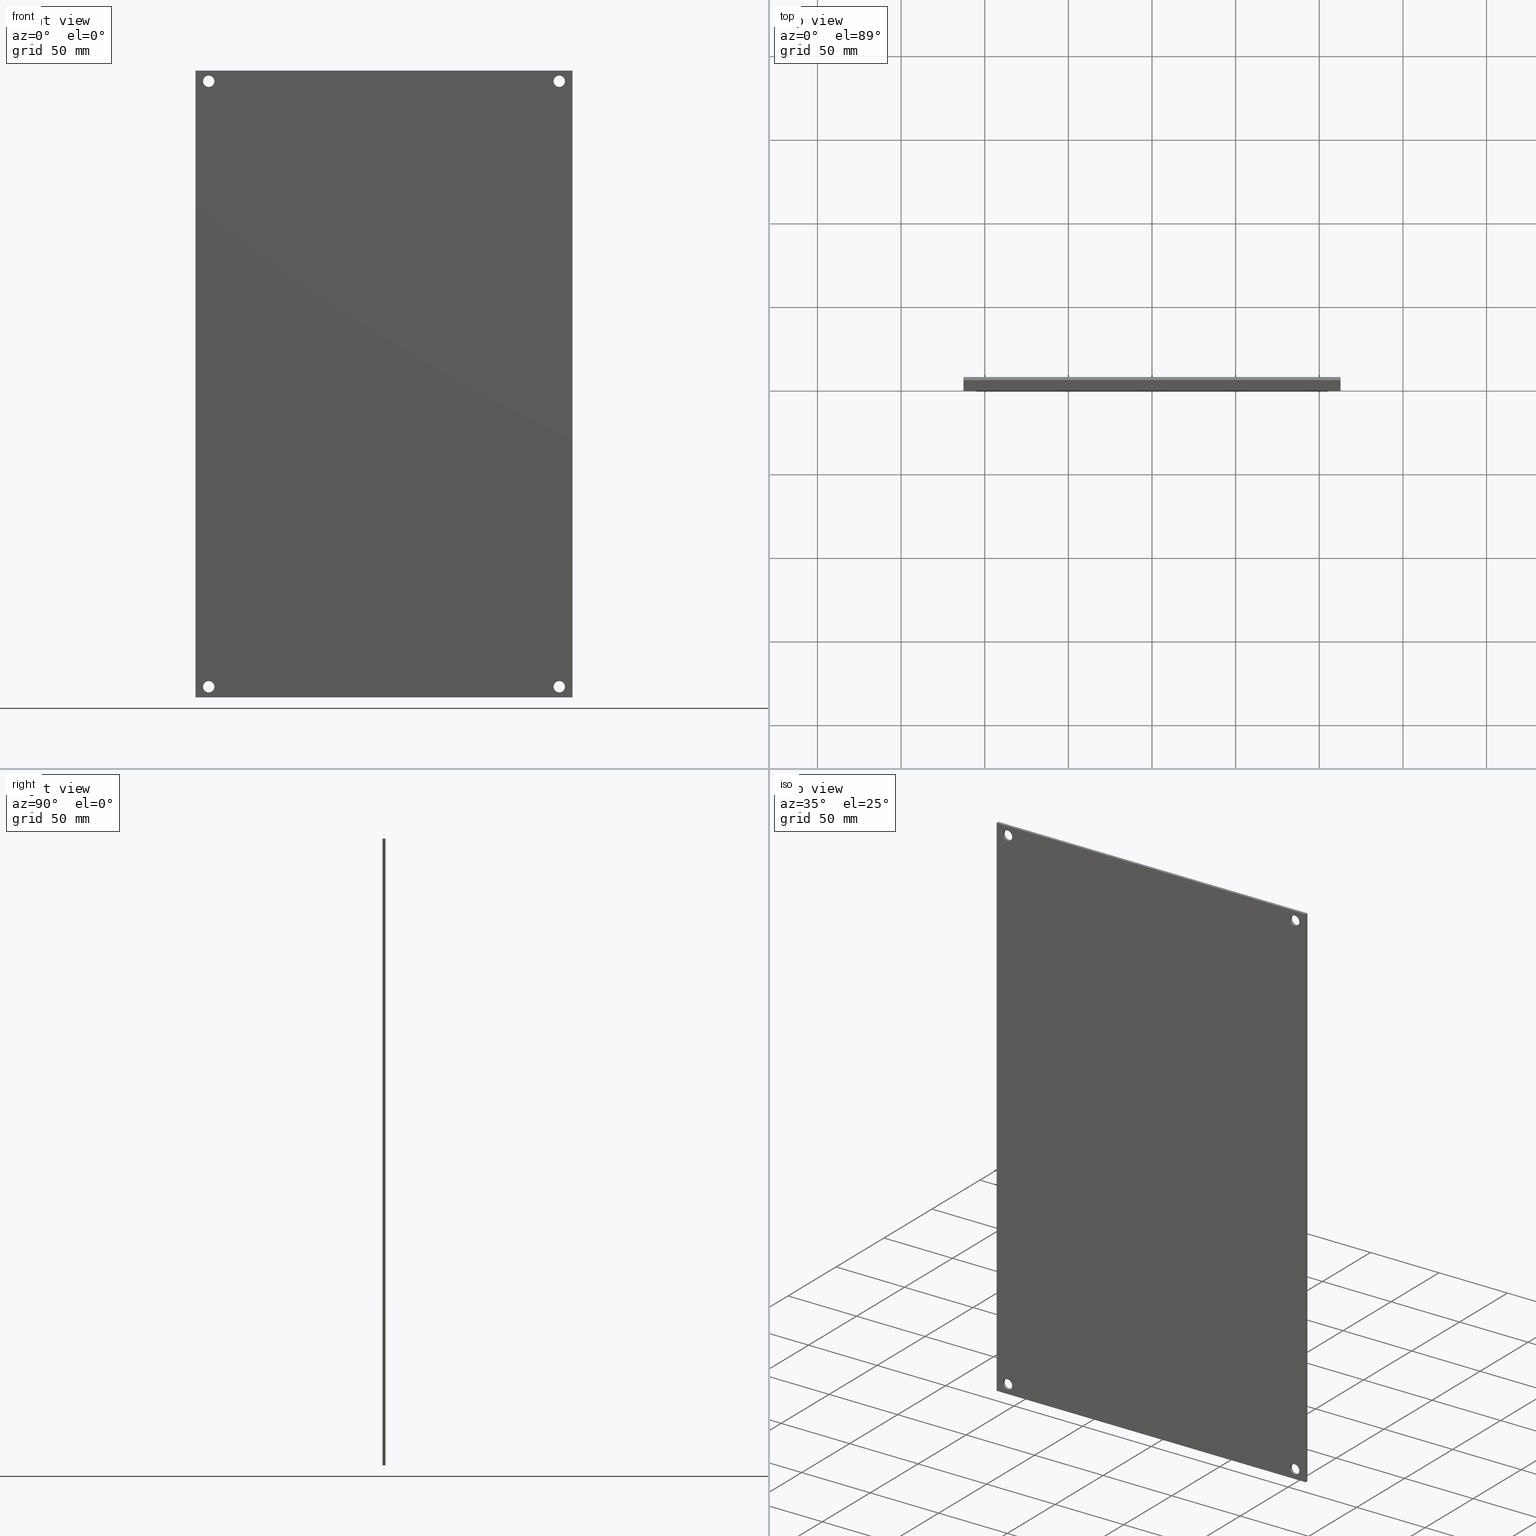
[diagram: canonical four-view strip — front | top / right | iso, engineering-drawing reading convention]
A machine part, canonical four-view strip (front | top / right | iso — engineering-drawing reading convention). The complete STEP part file that produces these views, byte-faithful:
ISO-10303-21;
HEADER;
FILE_DESCRIPTION (( 'STEP AP214' ),
    '1' );
FILE_NAME ('14G1509.STEP',
    '2019-09-13T17:13:19',
    ( '' ),
    ( '' ),
    'SwSTEP 2.0',
    'SolidWorks 2018',
    '' );
FILE_SCHEMA (( 'AUTOMOTIVE_DESIGN' ));
ENDSEC;

DATA;
#1 = SURFACE_STYLE_USAGE ( .BOTH. , #46 ) ;
#2 = FILL_AREA_STYLE ('',( #398 ) ) ;
#3 = EDGE_CURVE ( 'NONE', #502, #14, #254, .T. ) ;
#4 = UNCERTAINTY_MEASURE_WITH_UNIT (LENGTH_MEASURE( 1.000000000000000082E-05 ), #381, 'distance_accuracy_value', 'NONE');
#5 = SURFACE_STYLE_USAGE ( .BOTH. , #239 ) ;
#6 = ORIENTED_EDGE ( 'NONE', *, *, #21, .F. ) ;
#7 = CARTESIAN_POINT ( 'NONE',  ( -4.125000000000000000, 17.21433440479185251, 7.125000000000000000 ) ) ;
#8 =( LENGTH_UNIT ( ) NAMED_UNIT ( * ) SI_UNIT ( $, .METRE. ) );
#9 = DIRECTION ( 'NONE',  ( 0.0000000000000000000, 0.0000000000000000000, 1.000000000000000000 ) ) ;
#10 = AXIS2_PLACEMENT_3D ( 'NONE', #113, #460, #481 ) ;
#11 = VECTOR ( 'NONE', #415, 39.37007874015748143 ) ;
#12 =( NAMED_UNIT ( * ) SI_UNIT ( $, .STERADIAN. ) SOLID_ANGLE_UNIT ( ) );
#13 = FILL_AREA_STYLE_COLOUR ( '', #429 ) ;
#14 = VERTEX_POINT ( 'NONE', #380 ) ;
#15 = DIRECTION ( 'NONE',  ( 0.0000000000000000000, -1.000000000000000000, 0.0000000000000000000 ) ) ;
#16 = CARTESIAN_POINT ( 'NONE',  ( 4.437500000000000000, 0.07200000000000000844, 7.375000000000000000 ) ) ;
#17 = CARTESIAN_POINT ( 'NONE',  ( 4.125000000000000000, 0.0000000000000000000, 7.257499999999999396 ) ) ;
#18 = APPLICATION_CONTEXT ( 'automotive_design' ) ;
#19 = ORIENTED_EDGE ( 'NONE', *, *, #213, .F. ) ;
#20 = UNCERTAINTY_MEASURE_WITH_UNIT (LENGTH_MEASURE( 1.000000000000000082E-05 ), #203, 'distance_accuracy_value', 'NONE');
#21 = EDGE_CURVE ( 'NONE', #249, #249, #473, .T. ) ;
#22 = CARTESIAN_POINT ( 'NONE',  ( 4.437500000000000000, 0.07200000000000000844, -7.375000000000000000 ) ) ;
#23 = STYLED_ITEM ( 'NONE', ( #352 ), #232 ) ;
#24 = PRODUCT_DEFINITION ( 'UNKNOWN', '', #336, #504 ) ;
#25 = DIRECTION ( 'NONE',  ( -0.0000000000000000000, 1.000000000000000000, -0.0000000000000000000 ) ) ;
#26 = ADVANCED_FACE ( 'NONE', ( #119, #149 ), #118, .F. ) ;
#27 =( GEOMETRIC_REPRESENTATION_CONTEXT ( 3 ) GLOBAL_UNCERTAINTY_ASSIGNED_CONTEXT ( ( #75 ) ) GLOBAL_UNIT_ASSIGNED_CONTEXT ( ( #399, #160, #476 ) ) REPRESENTATION_CONTEXT ( 'NONE', 'WORKASPACE' ) );
#28 = PRESENTATION_STYLE_ASSIGNMENT (( #181 ) ) ;
#29 = COLOUR_RGB ( '',0.7921568627450980005, 0.8196078431372548767, 0.9333333333333333481 ) ;
#30 = EDGE_LOOP ( 'NONE', ( #517 ) ) ;
#31 = ADVANCED_FACE ( 'NONE', ( #353, #68, #127, #209, #85 ), #165, .F. ) ;
#32 = UNCERTAINTY_MEASURE_WITH_UNIT (LENGTH_MEASURE( 1.000000000000000082E-05 ), #100, 'distance_accuracy_value', 'NONE');
#33 = VERTEX_POINT ( 'NONE', #145 ) ;
#34 = SURFACE_STYLE_USAGE ( .BOTH. , #238 ) ;
#35 = DIMENSIONAL_EXPONENTS ( 1.000000000000000000, 0.0000000000000000000, 0.0000000000000000000, 0.0000000000000000000, 0.0000000000000000000, 0.0000000000000000000, 0.0000000000000000000 ) ;
#36 = LENGTH_MEASURE_WITH_UNIT ( LENGTH_MEASURE( 0.02539999999999999897 ), #526 );
#37 = PRESENTATION_LAYER_ASSIGNMENT (  '', '', ( #214 ) ) ;
#38 = SURFACE_STYLE_FILL_AREA ( #364 ) ;
#39 = DIRECTION ( 'NONE',  ( 0.0000000000000000000, 0.0000000000000000000, -1.000000000000000000 ) ) ;
#40 =( LENGTH_UNIT ( ) NAMED_UNIT ( * ) SI_UNIT ( $, .METRE. ) );
#41 = LINE ( 'NONE', #409, #51 ) ;
#42 =( LENGTH_UNIT ( ) NAMED_UNIT ( * ) SI_UNIT ( $, .METRE. ) );
#43 = LINE ( 'NONE', #174, #326 ) ;
#44 = ORIENTED_EDGE ( 'NONE', *, *, #267, .T. ) ;
#45 = MECHANICAL_DESIGN_GEOMETRIC_PRESENTATION_REPRESENTATION (  '', ( #474 ), #186 ) ;
#46 = SURFACE_SIDE_STYLE ('',( #392 ) ) ;
#47 =( LENGTH_UNIT ( ) NAMED_UNIT ( * ) SI_UNIT ( $, .METRE. ) );
#48 =( CONVERSION_BASED_UNIT ( 'INCH', #244 ) LENGTH_UNIT ( ) NAMED_UNIT ( #193 ) );
#49 = MECHANICAL_DESIGN_GEOMETRIC_PRESENTATION_REPRESENTATION (  '', ( #114 ), #256 ) ;
#50 =( LENGTH_UNIT ( ) NAMED_UNIT ( * ) SI_UNIT ( $, .METRE. ) );
#51 = VECTOR ( 'NONE', #335, 39.37007874015748143 ) ;
#52 = DIRECTION ( 'NONE',  ( 0.0000000000000000000, -0.0000000000000000000, -1.000000000000000000 ) ) ;
#53 = CARTESIAN_POINT ( 'NONE',  ( 4.125000000000000000, 17.21433440479185251, -7.125000000000000000 ) ) ;
#54 = EDGE_LOOP ( 'NONE', ( #295 ) ) ;
#55 = ORIENTED_EDGE ( 'NONE', *, *, #472, .F. ) ;
#56 = FILL_AREA_STYLE_COLOUR ( '', #370 ) ;
#57 = CARTESIAN_POINT ( 'NONE',  ( -4.437500000000000000, 0.07200000000000000844, 7.375000000000000000 ) ) ;
#58 = FILL_AREA_STYLE_COLOUR ( '', #29 ) ;
#59 = DIRECTION ( 'NONE',  ( 1.000000000000000000, 0.0000000000000000000, 0.0000000000000000000 ) ) ;
#60 = AXIS2_PLACEMENT_3D ( 'NONE', #266, #25, #241 ) ;
#61 = EDGE_LOOP ( 'NONE', ( #426, #182, #394, #44 ) ) ;
#62 =( NAMED_UNIT ( * ) PLANE_ANGLE_UNIT ( ) SI_UNIT ( $, .RADIAN. ) );
#63 = ORIENTED_EDGE ( 'NONE', *, *, #205, .T. ) ;
#64 = ADVANCED_BREP_SHAPE_REPRESENTATION ( '14G1509', ( #202, #96 ), #121 ) ;
#65 = AXIS2_PLACEMENT_3D ( 'NONE', #125, #126, #478 ) ;
#66 = ADVANCED_FACE ( 'NONE', ( #376, #309 ), #262, .F. ) ;
#67 = SURFACE_STYLE_FILL_AREA ( #445 ) ;
#68 = FACE_BOUND ( 'NONE', #155, .T. ) ;
#69 = EDGE_LOOP ( 'NONE', ( #190 ) ) ;
#70 = ADVANCED_FACE ( 'NONE', ( #286, #154, #179, #300, #463 ), #211, .T. ) ;
#71 = MECHANICAL_DESIGN_GEOMETRIC_PRESENTATION_REPRESENTATION (  '', ( #214 ), #456 ) ;
#72 = PLANE ( 'NONE',  #162 ) ;
#73 =( NAMED_UNIT ( * ) PLANE_ANGLE_UNIT ( ) SI_UNIT ( $, .RADIAN. ) );
#74 = LENGTH_MEASURE_WITH_UNIT ( LENGTH_MEASURE( 0.02539999999999999897 ), #8 );
#75 = UNCERTAINTY_MEASURE_WITH_UNIT (LENGTH_MEASURE( 1.000000000000000082E-05 ), #399, 'distance_accuracy_value', 'NONE');
#76 = STYLED_ITEM ( 'NONE', ( #229 ), #464 ) ;
#77 = VECTOR ( 'NONE', #363, 39.37007874015748143 ) ;
#78 = CARTESIAN_POINT ( 'NONE',  ( 4.125000000000000000, 0.07200000000000075784, 7.125000000000000000 ) ) ;
#79 = EDGE_LOOP ( 'NONE', ( #362, #234, #105, #63 ) ) ;
#80 = CARTESIAN_POINT ( 'NONE',  ( -4.437500000000000000, 0.07200000000000000844, 7.375000000000000000 ) ) ;
#81 = SURFACE_SIDE_STYLE ('',( #412 ) ) ;
#82 = UNCERTAINTY_MEASURE_WITH_UNIT (LENGTH_MEASURE( 1.000000000000000082E-05 ), #134, 'distance_accuracy_value', 'NONE');
#83 = SURFACE_STYLE_FILL_AREA ( #497 ) ;
#84 = AXIS2_PLACEMENT_3D ( 'NONE', #204, #485, #288 ) ;
#85 = FACE_BOUND ( 'NONE', #302, .T. ) ;
#86 = CARTESIAN_POINT ( 'NONE',  ( -4.437500000000000000, 0.07200000000000000844, -7.375000000000000000 ) ) ;
#87 = EDGE_LOOP ( 'NONE', ( #510 ) ) ;
#88 = CARTESIAN_POINT ( 'NONE',  ( -4.437500000000000000, 0.0000000000000000000, 7.375000000000000000 ) ) ;
#89 = EDGE_CURVE ( 'NONE', #287, #275, #422, .T. ) ;
#90 = CARTESIAN_POINT ( 'NONE',  ( -4.437500000000000000, 0.0000000000000000000, -7.375000000000000000 ) ) ;
#91 = FACE_OUTER_BOUND ( 'NONE', #407, .T. ) ;
#92 = SURFACE_SIDE_STYLE ('',( #521 ) ) ;
#93 = PRESENTATION_STYLE_ASSIGNMENT (( #369 ) ) ;
#94 = ORIENTED_EDGE ( 'NONE', *, *, #205, .F. ) ;
#95 = FILL_AREA_STYLE ('',( #433 ) ) ;
#96 = AXIS2_PLACEMENT_3D ( 'NONE', #343, #108, #146 ) ;
#97 = SURFACE_STYLE_USAGE ( .BOTH. , #171 ) ;
#98 = CARTESIAN_POINT ( 'NONE',  ( 4.437500000000000000, 0.0000000000000000000, 7.375000000000000000 ) ) ;
#99 =( GEOMETRIC_REPRESENTATION_CONTEXT ( 3 ) GLOBAL_UNCERTAINTY_ASSIGNED_CONTEXT ( ( #314 ) ) GLOBAL_UNIT_ASSIGNED_CONTEXT ( ( #194, #73, #468 ) ) REPRESENTATION_CONTEXT ( 'NONE', 'WORKASPACE' ) );
#100 =( CONVERSION_BASED_UNIT ( 'INCH', #418 ) LENGTH_UNIT ( ) NAMED_UNIT ( #357 ) );
#101 = DIRECTION ( 'NONE',  ( 0.0000000000000000000, -1.000000000000000000, 0.0000000000000000000 ) ) ;
#102 = CARTESIAN_POINT ( 'NONE',  ( 4.125000000000000000, 0.0000000000000000000, -6.992500000000000604 ) ) ;
#103 = DIRECTION ( 'NONE',  ( -0.0000000000000000000, 1.000000000000000000, 0.0000000000000000000 ) ) ;
#104 = EDGE_CURVE ( 'NONE', #33, #33, #349, .T. ) ;
#105 = ORIENTED_EDGE ( 'NONE', *, *, #267, .F. ) ;
#106 = EDGE_LOOP ( 'NONE', ( #388 ) ) ;
#107 = MECHANICAL_DESIGN_GEOMETRIC_PRESENTATION_REPRESENTATION (  '', ( #372 ), #378 ) ;
#108 = DIRECTION ( 'NONE',  ( 0.0000000000000000000, 0.0000000000000000000, 1.000000000000000000 ) ) ;
#109 = PRODUCT_RELATED_PRODUCT_CATEGORY ( 'part', '', ( #330 ) ) ;
#110 = LINE ( 'NONE', #90, #490 ) ;
#111 = LENGTH_MEASURE_WITH_UNIT ( LENGTH_MEASURE( 0.02539999999999999897 ), #47 );
#112 = EDGE_LOOP ( 'NONE', ( #377 ) ) ;
#113 = CARTESIAN_POINT ( 'NONE',  ( -4.125000000000000000, 0.07200000000000075784, 7.125000000000000000 ) ) ;
#114 = STYLED_ITEM ( 'NONE', ( #479 ), #390 ) ;
#115 = SURFACE_STYLE_USAGE ( .BOTH. , #391 ) ;
#116 = STYLED_ITEM ( 'NONE', ( #482 ), #31 ) ;
#117 = FILL_AREA_STYLE ('',( #283 ) ) ;
#118 = CYLINDRICAL_SURFACE ( 'NONE', #60, 0.1324999999999997569 ) ;
#119 = FACE_OUTER_BOUND ( 'NONE', #87, .T. ) ;
#120 = ORIENTED_EDGE ( 'NONE', *, *, #132, .F. ) ;
#121 =( GEOMETRIC_REPRESENTATION_CONTEXT ( 3 ) GLOBAL_UNCERTAINTY_ASSIGNED_CONTEXT ( ( #385 ) ) GLOBAL_UNIT_ASSIGNED_CONTEXT ( ( #511, #228, #375 ) ) REPRESENTATION_CONTEXT ( 'NONE', 'WORKASPACE' ) );
#122 = DIMENSIONAL_EXPONENTS ( 1.000000000000000000, 0.0000000000000000000, 0.0000000000000000000, 0.0000000000000000000, 0.0000000000000000000, 0.0000000000000000000, 0.0000000000000000000 ) ;
#123 = VERTEX_POINT ( 'NONE', #268 ) ;
#124 = MECHANICAL_DESIGN_GEOMETRIC_PRESENTATION_REPRESENTATION (  '', ( #351 ), #296 ) ;
#125 = CARTESIAN_POINT ( 'NONE',  ( -4.125000000000000000, 17.21433440479185251, -7.125000000000000000 ) ) ;
#126 = DIRECTION ( 'NONE',  ( -0.0000000000000000000, 1.000000000000000000, -0.0000000000000000000 ) ) ;
#127 = FACE_BOUND ( 'NONE', #54, .T. ) ;
#128 = EDGE_LOOP ( 'NONE', ( #320 ) ) ;
#129 = ORIENTED_EDGE ( 'NONE', *, *, #3, .F. ) ;
#130 = SURFACE_STYLE_USAGE ( .BOTH. , #92 ) ;
#131 = SURFACE_STYLE_USAGE ( .BOTH. , #446 ) ;
#132 = EDGE_CURVE ( 'NONE', #275, #502, #514, .T. ) ;
#133 = AXIS2_PLACEMENT_3D ( 'NONE', #57, #493, #175 ) ;
#134 =( CONVERSION_BASED_UNIT ( 'INCH', #74 ) LENGTH_UNIT ( ) NAMED_UNIT ( #158 ) );
#135 = CARTESIAN_POINT ( 'NONE',  ( 4.437500000000000000, 0.07200000000000000844, -7.375000000000000000 ) ) ;
#136 = LENGTH_MEASURE_WITH_UNIT ( LENGTH_MEASURE( 0.02539999999999999897 ), #301 );
#137 =( LENGTH_UNIT ( ) NAMED_UNIT ( * ) SI_UNIT ( $, .METRE. ) );
#138 =( NAMED_UNIT ( * ) PLANE_ANGLE_UNIT ( ) SI_UNIT ( $, .RADIAN. ) );
#139 = FILL_AREA_STYLE_COLOUR ( '', #218 ) ;
#140 = AXIS2_PLACEMENT_3D ( 'NONE', #440, #406, #9 ) ;
#141 = PLANE ( 'NONE',  #458 ) ;
#142 = PRESENTATION_LAYER_ASSIGNMENT (  '', '', ( #116 ) ) ;
#143 =( LENGTH_UNIT ( ) NAMED_UNIT ( * ) SI_UNIT ( $, .METRE. ) );
#144 = ORIENTED_EDGE ( 'NONE', *, *, #104, .T. ) ;
#145 = CARTESIAN_POINT ( 'NONE',  ( 4.125000000000000000, 0.07200000000000075784, 7.257499999999999396 ) ) ;
#146 = DIRECTION ( 'NONE',  ( 1.000000000000000000, 0.0000000000000000000, 0.0000000000000000000 ) ) ;
#147 = VERTEX_POINT ( 'NONE', #417 ) ;
#148 = SURFACE_STYLE_FILL_AREA ( #466 ) ;
#149 = FACE_OUTER_BOUND ( 'NONE', #128, .T. ) ;
#150 = STYLED_ITEM ( 'NONE', ( #461 ), #202 ) ;
#151 = EDGE_CURVE ( 'NONE', #420, #420, #172, .T. ) ;
#152 = CYLINDRICAL_SURFACE ( 'NONE', #365, 0.1324999999999997569 ) ;
#153 = SURFACE_STYLE_FILL_AREA ( #117 ) ;
#154 = FACE_BOUND ( 'NONE', #361, .T. ) ;
#155 = EDGE_LOOP ( 'NONE', ( #436 ) ) ;
#156 =( LENGTH_UNIT ( ) NAMED_UNIT ( * ) SI_UNIT ( $, .METRE. ) );
#157 =( NAMED_UNIT ( * ) PLANE_ANGLE_UNIT ( ) SI_UNIT ( $, .RADIAN. ) );
#158 = DIMENSIONAL_EXPONENTS ( 1.000000000000000000, 0.0000000000000000000, 0.0000000000000000000, 0.0000000000000000000, 0.0000000000000000000, 0.0000000000000000000, 0.0000000000000000000 ) ;
#159 = FACE_OUTER_BOUND ( 'NONE', #246, .T. ) ;
#160 =( NAMED_UNIT ( * ) PLANE_ANGLE_UNIT ( ) SI_UNIT ( $, .RADIAN. ) );
#161 =( NAMED_UNIT ( * ) PLANE_ANGLE_UNIT ( ) SI_UNIT ( $, .RADIAN. ) );
#162 = AXIS2_PLACEMENT_3D ( 'NONE', #166, #39, #207 ) ;
#163 = VECTOR ( 'NONE', #383, 39.37007874015748143 ) ;
#164 = ORIENTED_EDGE ( 'NONE', *, *, #213, .T. ) ;
#165 = PLANE ( 'NONE',  #453 ) ;
#166 = CARTESIAN_POINT ( 'NONE',  ( -4.437500000000000000, 0.07200000000000000844, -7.375000000000000000 ) ) ;
#167 = MECHANICAL_DESIGN_GEOMETRIC_PRESENTATION_REPRESENTATION (  '', ( #116 ), #276 ) ;
#168 = FILL_AREA_STYLE_COLOUR ( '', #196 ) ;
#169 =( NAMED_UNIT ( * ) SI_UNIT ( $, .STERADIAN. ) SOLID_ANGLE_UNIT ( ) );
#170 = LINE ( 'NONE', #414, #487 ) ;
#171 = SURFACE_SIDE_STYLE ('',( #67 ) ) ;
#172 = CIRCLE ( 'NONE', #316, 0.1324999999999997569 ) ;
#173 = COLOUR_RGB ( '',0.7921568627450980005, 0.8196078431372548767, 0.9333333333333333481 ) ;
#174 = CARTESIAN_POINT ( 'NONE',  ( 4.437500000000000000, 0.07200000000000000844, 7.375000000000000000 ) ) ;
#175 = DIRECTION ( 'NONE',  ( 0.0000000000000000000, 0.0000000000000000000, 1.000000000000000000 ) ) ;
#176 = SURFACE_SIDE_STYLE ('',( #83 ) ) ;
#177 = LENGTH_MEASURE_WITH_UNIT ( LENGTH_MEASURE( 0.02539999999999999897 ), #143 );
#178 = DIRECTION ( 'NONE',  ( -1.000000000000000000, -0.0000000000000000000, -0.0000000000000000000 ) ) ;
#179 = FACE_BOUND ( 'NONE', #328, .T. ) ;
#180 = ORIENTED_EDGE ( 'NONE', *, *, #441, .F. ) ;
#181 = SURFACE_STYLE_USAGE ( .BOTH. , #185 ) ;
#182 = ORIENTED_EDGE ( 'NONE', *, *, #441, .T. ) ;
#183 =( LENGTH_UNIT ( ) NAMED_UNIT ( * ) SI_UNIT ( $, .METRE. ) );
#184 = VERTEX_POINT ( 'NONE', #305 ) ;
#185 = SURFACE_SIDE_STYLE ('',( #278 ) ) ;
#186 =( GEOMETRIC_REPRESENTATION_CONTEXT ( 3 ) GLOBAL_UNCERTAINTY_ASSIGNED_CONTEXT ( ( #515 ) ) GLOBAL_UNIT_ASSIGNED_CONTEXT ( ( #410, #258, #250 ) ) REPRESENTATION_CONTEXT ( 'NONE', 'WORKASPACE' ) );
#187 = EDGE_LOOP ( 'NONE', ( #465, #393, #180, #271 ) ) ;
#188 = ORIENTED_EDGE ( 'NONE', *, *, #151, .T. ) ;
#189 = COLOUR_RGB ( '',0.7921568627450980005, 0.8196078431372548767, 0.9333333333333333481 ) ;
#190 = ORIENTED_EDGE ( 'NONE', *, *, #395, .T. ) ;
#191 = AXIS2_PLACEMENT_3D ( 'NONE', #260, #221, #212 ) ;
#192 = MECHANICAL_DESIGN_GEOMETRIC_PRESENTATION_REPRESENTATION (  '', ( #285 ), #27 ) ;
#193 = DIMENSIONAL_EXPONENTS ( 1.000000000000000000, 0.0000000000000000000, 0.0000000000000000000, 0.0000000000000000000, 0.0000000000000000000, 0.0000000000000000000, 0.0000000000000000000 ) ;
#194 =( CONVERSION_BASED_UNIT ( 'INCH', #359 ) LENGTH_UNIT ( ) NAMED_UNIT ( #281 ) );
#195 = LINE ( 'NONE', #489, #11 ) ;
#196 = COLOUR_RGB ( '',0.7921568627450980005, 0.8196078431372548767, 0.9333333333333333481 ) ;
#197 = SURFACE_STYLE_FILL_AREA ( #95 ) ;
#198 = DIMENSIONAL_EXPONENTS ( 1.000000000000000000, 0.0000000000000000000, 0.0000000000000000000, 0.0000000000000000000, 0.0000000000000000000, 0.0000000000000000000, 0.0000000000000000000 ) ;
#199 = EDGE_LOOP ( 'NONE', ( #129, #120, #220, #19 ) ) ;
#200 = DIMENSIONAL_EXPONENTS ( 1.000000000000000000, 0.0000000000000000000, 0.0000000000000000000, 0.0000000000000000000, 0.0000000000000000000, 0.0000000000000000000, 0.0000000000000000000 ) ;
#201 = PRESENTATION_LAYER_ASSIGNMENT (  '', '', ( #150 ) ) ;
#202 = MANIFOLD_SOLID_BREP ( 'COM42873-1-solid1', #427 ) ;
#203 =( CONVERSION_BASED_UNIT ( 'INCH', #217 ) LENGTH_UNIT ( ) NAMED_UNIT ( #122 ) );
#204 = CARTESIAN_POINT ( 'NONE',  ( -4.125000000000000000, 0.0000000000000000000, 7.125000000000000000 ) ) ;
#205 = EDGE_CURVE ( 'NONE', #225, #287, #443, .T. ) ;
#206 =( NAMED_UNIT ( * ) SI_UNIT ( $, .STERADIAN. ) SOLID_ANGLE_UNIT ( ) );
#207 = DIRECTION ( 'NONE',  ( -1.000000000000000000, 0.0000000000000000000, -0.0000000000000000000 ) ) ;
#208 = DIRECTION ( 'NONE',  ( 0.0000000000000000000, 0.0000000000000000000, 1.000000000000000000 ) ) ;
#209 = FACE_BOUND ( 'NONE', #106, .T. ) ;
#210 = EDGE_LOOP ( 'NONE', ( #188 ) ) ;
#211 = PLANE ( 'NONE',  #498 ) ;
#212 = DIRECTION ( 'NONE',  ( 0.0000000000000000000, 0.0000000000000000000, 1.000000000000000000 ) ) ;
#213 = EDGE_CURVE ( 'NONE', #14, #287, #339, .T. ) ;
#214 = STYLED_ITEM ( 'NONE', ( #93 ), #277 ) ;
#215 =( NAMED_UNIT ( * ) PLANE_ANGLE_UNIT ( ) SI_UNIT ( $, .RADIAN. ) );
#216 = DIRECTION ( 'NONE',  ( 0.0000000000000000000, 0.0000000000000000000, 1.000000000000000000 ) ) ;
#217 = LENGTH_MEASURE_WITH_UNIT ( LENGTH_MEASURE( 0.02539999999999999897 ), #42 );
#218 = COLOUR_RGB ( '',0.7921568627450980005, 0.8196078431372548767, 0.9333333333333333481 ) ;
#219 =( NAMED_UNIT ( * ) PLANE_ANGLE_UNIT ( ) SI_UNIT ( $, .RADIAN. ) );
#220 = ORIENTED_EDGE ( 'NONE', *, *, #89, .F. ) ;
#221 = DIRECTION ( 'NONE',  ( -0.0000000000000000000, 1.000000000000000000, -0.0000000000000000000 ) ) ;
#222 =( GEOMETRIC_REPRESENTATION_CONTEXT ( 3 ) GLOBAL_UNCERTAINTY_ASSIGNED_CONTEXT ( ( #82 ) ) GLOBAL_UNIT_ASSIGNED_CONTEXT ( ( #134, #444, #169 ) ) REPRESENTATION_CONTEXT ( 'NONE', 'WORKASPACE' ) );
#223 = CARTESIAN_POINT ( 'NONE',  ( -4.125000000000000000, 0.0000000000000000000, -6.992500000000000604 ) ) ;
#224 = EDGE_CURVE ( 'NONE', #450, #502, #43, .T. ) ;
#225 = VERTEX_POINT ( 'NONE', #235 ) ;
#226 =( NAMED_UNIT ( * ) SI_UNIT ( $, .STERADIAN. ) SOLID_ANGLE_UNIT ( ) );
#227 = FILL_AREA_STYLE_COLOUR ( '', #173 ) ;
#228 =( NAMED_UNIT ( * ) PLANE_ANGLE_UNIT ( ) SI_UNIT ( $, .RADIAN. ) );
#229 = PRESENTATION_STYLE_ASSIGNMENT (( #131 ) ) ;
#230 = LINE ( 'NONE', #80, #77 ) ;
#231 = PRESENTATION_LAYER_ASSIGNMENT (  '', '', ( #351 ) ) ;
#232 = ADVANCED_FACE ( 'NONE', ( #367 ), #72, .T. ) ;
#233 = DIRECTION ( 'NONE',  ( 0.0000000000000000000, -1.000000000000000000, 0.0000000000000000000 ) ) ;
#234 = ORIENTED_EDGE ( 'NONE', *, *, #503, .F. ) ;
#235 = CARTESIAN_POINT ( 'NONE',  ( -4.437500000000000000, 0.0000000000000000000, -7.375000000000000000 ) ) ;
#236 = EDGE_CURVE ( 'NONE', #184, #184, #284, .T. ) ;
#237 = DIRECTION ( 'NONE',  ( -0.0000000000000000000, -0.0000000000000000000, -1.000000000000000000 ) ) ;
#238 = SURFACE_SIDE_STYLE ('',( #148 ) ) ;
#239 = SURFACE_SIDE_STYLE ('',( #38 ) ) ;
#240 =( CONVERSION_BASED_UNIT ( 'INCH', #513 ) LENGTH_UNIT ( ) NAMED_UNIT ( #421 ) );
#241 = DIRECTION ( 'NONE',  ( 0.0000000000000000000, 0.0000000000000000000, 1.000000000000000000 ) ) ;
#242 = PRESENTATION_LAYER_ASSIGNMENT (  '', '', ( #372 ) ) ;
#243 = DIRECTION ( 'NONE',  ( 0.0000000000000000000, 0.0000000000000000000, 1.000000000000000000 ) ) ;
#244 = LENGTH_MEASURE_WITH_UNIT ( LENGTH_MEASURE( 0.02539999999999999897 ), #50 );
#245 = EDGE_CURVE ( 'NONE', #14, #344, #230, .T. ) ;
#246 = EDGE_LOOP ( 'NONE', ( #164, #94, #55, #491 ) ) ;
#247 = DIRECTION ( 'NONE',  ( 0.0000000000000000000, -0.0000000000000000000, -1.000000000000000000 ) ) ;
#248 = CARTESIAN_POINT ( 'NONE',  ( -4.125000000000000000, 0.07200000000000075784, -7.125000000000000000 ) ) ;
#249 = VERTEX_POINT ( 'NONE', #509 ) ;
#250 =( NAMED_UNIT ( * ) SI_UNIT ( $, .STERADIAN. ) SOLID_ANGLE_UNIT ( ) );
#251 =( GEOMETRIC_REPRESENTATION_CONTEXT ( 3 ) GLOBAL_UNCERTAINTY_ASSIGNED_CONTEXT ( ( #253 ) ) GLOBAL_UNIT_ASSIGNED_CONTEXT ( ( #346, #62, #264 ) ) REPRESENTATION_CONTEXT ( 'NONE', 'WORKASPACE' ) );
#252 = DIRECTION ( 'NONE',  ( 0.0000000000000000000, -0.0000000000000000000, -1.000000000000000000 ) ) ;
#253 = UNCERTAINTY_MEASURE_WITH_UNIT (LENGTH_MEASURE( 1.000000000000000082E-05 ), #346, 'distance_accuracy_value', 'NONE');
#254 = LINE ( 'NONE', #416, #282 ) ;
#255 = CARTESIAN_POINT ( 'NONE',  ( 4.437500000000000000, 0.0000000000000000000, -7.375000000000000000 ) ) ;
#256 =( GEOMETRIC_REPRESENTATION_CONTEXT ( 3 ) GLOBAL_UNCERTAINTY_ASSIGNED_CONTEXT ( ( #374 ) ) GLOBAL_UNIT_ASSIGNED_CONTEXT ( ( #48, #138, #333 ) ) REPRESENTATION_CONTEXT ( 'NONE', 'WORKASPACE' ) );
#257 = SURFACE_SIDE_STYLE ('',( #197 ) ) ;
#258 =( NAMED_UNIT ( * ) PLANE_ANGLE_UNIT ( ) SI_UNIT ( $, .RADIAN. ) );
#259 = EDGE_CURVE ( 'NONE', #147, #147, #348, .T. ) ;
#260 = CARTESIAN_POINT ( 'NONE',  ( -4.125000000000000000, 0.0000000000000000000, -7.125000000000000000 ) ) ;
#261 = VECTOR ( 'NONE', #237, 39.37007874015748143 ) ;
#262 = CYLINDRICAL_SURFACE ( 'NONE', #442, 0.1324999999999997569 ) ;
#263 = EDGE_LOOP ( 'NONE', ( #310 ) ) ;
#264 =( NAMED_UNIT ( * ) SI_UNIT ( $, .STERADIAN. ) SOLID_ANGLE_UNIT ( ) );
#265 = DIRECTION ( 'NONE',  ( 1.000000000000000000, -0.0000000000000000000, 0.0000000000000000000 ) ) ;
#266 = CARTESIAN_POINT ( 'NONE',  ( 4.125000000000000000, 17.21433440479185251, 7.125000000000000000 ) ) ;
#267 = EDGE_CURVE ( 'NONE', #225, #419, #110, .T. ) ;
#268 = CARTESIAN_POINT ( 'NONE',  ( -4.125000000000000000, 0.07200000000000075784, -6.992500000000000604 ) ) ;
#269 = AXIS2_PLACEMENT_3D ( 'NONE', #248, #101, #290 ) ;
#270 = ORIENTED_EDGE ( 'NONE', *, *, #259, .F. ) ;
#271 = ORIENTED_EDGE ( 'NONE', *, *, #224, .T. ) ;
#272 = DIMENSIONAL_EXPONENTS ( 1.000000000000000000, 0.0000000000000000000, 0.0000000000000000000, 0.0000000000000000000, 0.0000000000000000000, 0.0000000000000000000, 0.0000000000000000000 ) ;
#273 = VECTOR ( 'NONE', #355, 39.37007874015748143 ) ;
#274 = PRESENTATION_LAYER_ASSIGNMENT (  '', '', ( #23 ) ) ;
#275 = VERTEX_POINT ( 'NONE', #483 ) ;
#276 =( GEOMETRIC_REPRESENTATION_CONTEXT ( 3 ) GLOBAL_UNCERTAINTY_ASSIGNED_CONTEXT ( ( #397 ) ) GLOBAL_UNIT_ASSIGNED_CONTEXT ( ( #492, #215, #12 ) ) REPRESENTATION_CONTEXT ( 'NONE', 'WORKASPACE' ) );
#277 = ADVANCED_FACE ( 'NONE', ( #331, #470 ), #405, .F. ) ;
#278 = SURFACE_STYLE_FILL_AREA ( #303 ) ;
#279 = FILL_AREA_STYLE_COLOUR ( '', #500 ) ;
#280 = PRESENTATION_STYLE_ASSIGNMENT (( #1 ) ) ;
#281 = DIMENSIONAL_EXPONENTS ( 1.000000000000000000, 0.0000000000000000000, 0.0000000000000000000, 0.0000000000000000000, 0.0000000000000000000, 0.0000000000000000000, 0.0000000000000000000 ) ;
#282 = VECTOR ( 'NONE', #455, 39.37007874015748143 ) ;
#283 = FILL_AREA_STYLE_COLOUR ( '', #413 ) ;
#284 = CIRCLE ( 'NONE', #329, 0.1324999999999997569 ) ;
#285 = STYLED_ITEM ( 'NONE', ( #373 ), #26 ) ;
#286 = FACE_OUTER_BOUND ( 'NONE', #61, .T. ) ;
#287 = VERTEX_POINT ( 'NONE', #86 ) ;
#288 = DIRECTION ( 'NONE',  ( 0.0000000000000000000, 0.0000000000000000000, 1.000000000000000000 ) ) ;
#289 = CARTESIAN_POINT ( 'NONE',  ( 4.125000000000000000, 0.07200000000000075784, -7.125000000000000000 ) ) ;
#290 = DIRECTION ( 'NONE',  ( 0.0000000000000000000, 0.0000000000000000000, 1.000000000000000000 ) ) ;
#291 = VERTEX_POINT ( 'NONE', #17 ) ;
#292 = CARTESIAN_POINT ( 'NONE',  ( -4.437500000000000000, 0.0000000000000000000, -7.375000000000000000 ) ) ;
#293 = PRESENTATION_STYLE_ASSIGNMENT (( #97 ) ) ;
#294 = DIRECTION ( 'NONE',  ( -0.0000000000000000000, 1.000000000000000000, -0.0000000000000000000 ) ) ;
#295 = ORIENTED_EDGE ( 'NONE', *, *, #21, .T. ) ;
#296 =( GEOMETRIC_REPRESENTATION_CONTEXT ( 3 ) GLOBAL_UNCERTAINTY_ASSIGNED_CONTEXT ( ( #338 ) ) GLOBAL_UNIT_ASSIGNED_CONTEXT ( ( #240, #161, #400 ) ) REPRESENTATION_CONTEXT ( 'NONE', 'WORKASPACE' ) );
#297 = CARTESIAN_POINT ( 'NONE',  ( -4.437500000000000000, 0.07200000000000000844, -7.375000000000000000 ) ) ;
#298 = PRESENTATION_LAYER_ASSIGNMENT (  '', '', ( #312 ) ) ;
#299 = CIRCLE ( 'NONE', #269, 0.1324999999999997569 ) ;
#300 = FACE_BOUND ( 'NONE', #210, .T. ) ;
#301 =( LENGTH_UNIT ( ) NAMED_UNIT ( * ) SI_UNIT ( $, .METRE. ) );
#302 = EDGE_LOOP ( 'NONE', ( #144 ) ) ;
#303 = FILL_AREA_STYLE ('',( #56 ) ) ;
#304 =( GEOMETRIC_REPRESENTATION_CONTEXT ( 3 ) GLOBAL_UNCERTAINTY_ASSIGNED_CONTEXT ( ( #32 ) ) GLOBAL_UNIT_ASSIGNED_CONTEXT ( ( #100, #219, #408 ) ) REPRESENTATION_CONTEXT ( 'NONE', 'WORKASPACE' ) );
#305 = CARTESIAN_POINT ( 'NONE',  ( 4.125000000000000000, 0.07200000000000075784, -6.992500000000000604 ) ) ;
#306 = APPLICATION_PROTOCOL_DEFINITION ( 'draft international standard', 'automotive_design', 1998, #18 ) ;
#307 = COLOUR_RGB ( '',0.7921568627450980005, 0.8196078431372548767, 0.9333333333333333481 ) ;
#308 = FILL_AREA_STYLE ('',( #454 ) ) ;
#309 = FACE_OUTER_BOUND ( 'NONE', #516, .T. ) ;
#310 = ORIENTED_EDGE ( 'NONE', *, *, #236, .F. ) ;
#311 = PRODUCT_CONTEXT ( 'NONE', #451, 'mechanical' ) ;
#312 = STYLED_ITEM ( 'NONE', ( #477 ), #64 ) ;
#313 = PRODUCT_DEFINITION_SHAPE ( 'NONE', 'NONE',  #24 ) ;
#314 = UNCERTAINTY_MEASURE_WITH_UNIT (LENGTH_MEASURE( 1.000000000000000082E-05 ), #194, 'distance_accuracy_value', 'NONE');
#315 = VECTOR ( 'NONE', #252, 39.37007874015748143 ) ;
#316 = AXIS2_PLACEMENT_3D ( 'NONE', #428, #389, #471 ) ;
#317 = FACE_OUTER_BOUND ( 'NONE', #187, .T. ) ;
#318 = ADVANCED_FACE ( 'NONE', ( #317 ), #434, .T. ) ;
#319 = DIMENSIONAL_EXPONENTS ( 1.000000000000000000, 0.0000000000000000000, 0.0000000000000000000, 0.0000000000000000000, 0.0000000000000000000, 0.0000000000000000000, 0.0000000000000000000 ) ;
#320 = ORIENTED_EDGE ( 'NONE', *, *, #104, .F. ) ;
#321 = DIMENSIONAL_EXPONENTS ( 1.000000000000000000, 0.0000000000000000000, 0.0000000000000000000, 0.0000000000000000000, 0.0000000000000000000, 0.0000000000000000000, 0.0000000000000000000 ) ;
#322 = EDGE_CURVE ( 'NONE', #123, #123, #299, .T. ) ;
#323 = PRESENTATION_LAYER_ASSIGNMENT (  '', '', ( #114 ) ) ;
#324 = SHAPE_DEFINITION_REPRESENTATION ( #313, #64 ) ;
#325 = FACE_OUTER_BOUND ( 'NONE', #112, .T. ) ;
#326 = VECTOR ( 'NONE', #103, 39.37007874015748143 ) ;
#327 = DIRECTION ( 'NONE',  ( 0.0000000000000000000, -1.000000000000000000, 0.0000000000000000000 ) ) ;
#328 = EDGE_LOOP ( 'NONE', ( #368 ) ) ;
#329 = AXIS2_PLACEMENT_3D ( 'NONE', #289, #327, #243 ) ;
#330 = PRODUCT ( '14G1509', '14G1509', '', ( #311 ) ) ;
#331 = FACE_OUTER_BOUND ( 'NONE', #401, .T. ) ;
#332 = ORIENTED_EDGE ( 'NONE', *, *, #224, .F. ) ;
#333 =( NAMED_UNIT ( * ) SI_UNIT ( $, .STERADIAN. ) SOLID_ANGLE_UNIT ( ) );
#334 = FILL_AREA_STYLE ('',( #58 ) ) ;
#335 = DIRECTION ( 'NONE',  ( -0.0000000000000000000, 0.0000000000000000000, 1.000000000000000000 ) ) ;
#336 = PRODUCT_DEFINITION_FORMATION_WITH_SPECIFIED_SOURCE ( 'ANY', '', #330, .NOT_KNOWN. ) ;
#337 = SURFACE_STYLE_FILL_AREA ( #308 ) ;
#338 = UNCERTAINTY_MEASURE_WITH_UNIT (LENGTH_MEASURE( 1.000000000000000082E-05 ), #240, 'distance_accuracy_value', 'NONE');
#339 = LINE ( 'NONE', #519, #261 ) ;
#340 = SURFACE_STYLE_USAGE ( .BOTH. , #176 ) ;
#341 = SURFACE_STYLE_USAGE ( .BOTH. , #257 ) ;
#342 =( LENGTH_UNIT ( ) NAMED_UNIT ( * ) SI_UNIT ( $, .METRE. ) );
#343 = CARTESIAN_POINT ( 'NONE',  ( 0.0000000000000000000, 0.0000000000000000000, 0.0000000000000000000 ) ) ;
#344 = VERTEX_POINT ( 'NONE', #88 ) ;
#345 = DIRECTION ( 'NONE',  ( 0.0000000000000000000, 0.0000000000000000000, -1.000000000000000000 ) ) ;
#346 =( CONVERSION_BASED_UNIT ( 'INCH', #177 ) LENGTH_UNIT ( ) NAMED_UNIT ( #321 ) );
#347 = CIRCLE ( 'NONE', #140, 0.1324999999999997569 ) ;
#348 = CIRCLE ( 'NONE', #84, 0.1324999999999997569 ) ;
#349 = CIRCLE ( 'NONE', #522, 0.1324999999999997569 ) ;
#350 = DIMENSIONAL_EXPONENTS ( 1.000000000000000000, 0.0000000000000000000, 0.0000000000000000000, 0.0000000000000000000, 0.0000000000000000000, 0.0000000000000000000, 0.0000000000000000000 ) ;
#351 = STYLED_ITEM ( 'NONE', ( #280 ), #318 ) ;
#352 = PRESENTATION_STYLE_ASSIGNMENT (( #115 ) ) ;
#353 = FACE_OUTER_BOUND ( 'NONE', #199, .T. ) ;
#354 = ORIENTED_EDGE ( 'NONE', *, *, #132, .T. ) ;
#355 = DIRECTION ( 'NONE',  ( 0.0000000000000000000, 1.000000000000000000, 0.0000000000000000000 ) ) ;
#356 = STYLED_ITEM ( 'NONE', ( #387 ), #66 ) ;
#357 = DIMENSIONAL_EXPONENTS ( 1.000000000000000000, 0.0000000000000000000, 0.0000000000000000000, 0.0000000000000000000, 0.0000000000000000000, 0.0000000000000000000, 0.0000000000000000000 ) ;
#358 = VERTEX_POINT ( 'NONE', #223 ) ;
#359 = LENGTH_MEASURE_WITH_UNIT ( LENGTH_MEASURE( 0.02539999999999999897 ), #156 );
#360 =( CONVERSION_BASED_UNIT ( 'INCH', #36 ) LENGTH_UNIT ( ) NAMED_UNIT ( #319 ) );
#361 = EDGE_LOOP ( 'NONE', ( #484 ) ) ;
#362 = ORIENTED_EDGE ( 'NONE', *, *, #89, .T. ) ;
#363 = DIRECTION ( 'NONE',  ( 0.0000000000000000000, -1.000000000000000000, -0.0000000000000000000 ) ) ;
#364 = FILL_AREA_STYLE ('',( #227 ) ) ;
#365 = AXIS2_PLACEMENT_3D ( 'NONE', #53, #294, #411 ) ;
#366 = PRESENTATION_LAYER_ASSIGNMENT (  '', '', ( #285 ) ) ;
#367 = FACE_OUTER_BOUND ( 'NONE', #79, .T. ) ;
#368 = ORIENTED_EDGE ( 'NONE', *, *, #259, .T. ) ;
#369 = SURFACE_STYLE_USAGE ( .BOTH. , #81 ) ;
#370 = COLOUR_RGB ( '',0.7921568627450980005, 0.8196078431372548767, 0.9333333333333333481 ) ;
#371 = CARTESIAN_POINT ( 'NONE',  ( -4.437500000000000000, 0.0000000000000000000, -7.375000000000000000 ) ) ;
#372 = STYLED_ITEM ( 'NONE', ( #28 ), #524 ) ;
#373 = PRESENTATION_STYLE_ASSIGNMENT (( #5 ) ) ;
#374 = UNCERTAINTY_MEASURE_WITH_UNIT (LENGTH_MEASURE( 1.000000000000000082E-05 ), #48, 'distance_accuracy_value', 'NONE');
#375 =( NAMED_UNIT ( * ) SI_UNIT ( $, .STERADIAN. ) SOLID_ANGLE_UNIT ( ) );
#376 = FACE_OUTER_BOUND ( 'NONE', #452, .T. ) ;
#377 = ORIENTED_EDGE ( 'NONE', *, *, #151, .F. ) ;
#378 =( GEOMETRIC_REPRESENTATION_CONTEXT ( 3 ) GLOBAL_UNCERTAINTY_ASSIGNED_CONTEXT ( ( #4 ) ) GLOBAL_UNIT_ASSIGNED_CONTEXT ( ( #381, #448, #226 ) ) REPRESENTATION_CONTEXT ( 'NONE', 'WORKASPACE' ) );
#379 = SURFACE_STYLE_USAGE ( .BOTH. , #505 ) ;
#380 = CARTESIAN_POINT ( 'NONE',  ( -4.437500000000000000, 0.07200000000000000844, 7.375000000000000000 ) ) ;
#381 =( CONVERSION_BASED_UNIT ( 'INCH', #469 ) LENGTH_UNIT ( ) NAMED_UNIT ( #272 ) );
#382 = VECTOR ( 'NONE', #265, 39.37007874015748143 ) ;
#383 = DIRECTION ( 'NONE',  ( -0.0000000000000000000, -0.0000000000000000000, 1.000000000000000000 ) ) ;
#384 = ORIENTED_EDGE ( 'NONE', *, *, #462, .F. ) ;
#385 = UNCERTAINTY_MEASURE_WITH_UNIT (LENGTH_MEASURE( 1.000000000000000082E-05 ), #511, 'distance_accuracy_value', 'NONE');
#386 = PRESENTATION_LAYER_ASSIGNMENT (  '', '', ( #76 ) ) ;
#387 = PRESENTATION_STYLE_ASSIGNMENT (( #130 ) ) ;
#388 = ORIENTED_EDGE ( 'NONE', *, *, #236, .T. ) ;
#389 = DIRECTION ( 'NONE',  ( -0.0000000000000000000, 1.000000000000000000, -0.0000000000000000000 ) ) ;
#390 = ADVANCED_FACE ( 'NONE', ( #325, #527 ), #152, .F. ) ;
#391 = SURFACE_SIDE_STYLE ('',( #153 ) ) ;
#392 = SURFACE_STYLE_FILL_AREA ( #2 ) ;
#393 = ORIENTED_EDGE ( 'NONE', *, *, #245, .T. ) ;
#394 = ORIENTED_EDGE ( 'NONE', *, *, #472, .T. ) ;
#395 = EDGE_CURVE ( 'NONE', #291, #291, #347, .T. ) ;
#396 = PRESENTATION_LAYER_ASSIGNMENT (  '', '', ( #474 ) ) ;
#397 = UNCERTAINTY_MEASURE_WITH_UNIT (LENGTH_MEASURE( 1.000000000000000082E-05 ), #492, 'distance_accuracy_value', 'NONE');
#398 = FILL_AREA_STYLE_COLOUR ( '', #307 ) ;
#399 =( CONVERSION_BASED_UNIT ( 'INCH', #111 ) LENGTH_UNIT ( ) NAMED_UNIT ( #198 ) );
#400 =( NAMED_UNIT ( * ) SI_UNIT ( $, .STERADIAN. ) SOLID_ANGLE_UNIT ( ) );
#401 = EDGE_LOOP ( 'NONE', ( #384 ) ) ;
#402 = FILL_AREA_STYLE_COLOUR ( '', #189 ) ;
#403 = DIRECTION ( 'NONE',  ( 1.000000000000000000, 0.0000000000000000000, 0.0000000000000000000 ) ) ;
#404 = COLOUR_RGB ( '',0.7921568627450980005, 0.8196078431372548767, 0.9333333333333333481 ) ;
#405 = CYLINDRICAL_SURFACE ( 'NONE', #65, 0.1324999999999997569 ) ;
#406 = DIRECTION ( 'NONE',  ( -0.0000000000000000000, 1.000000000000000000, -0.0000000000000000000 ) ) ;
#407 = EDGE_LOOP ( 'NONE', ( #354, #332, #523, #437 ) ) ;
#408 =( NAMED_UNIT ( * ) SI_UNIT ( $, .STERADIAN. ) SOLID_ANGLE_UNIT ( ) );
#409 = CARTESIAN_POINT ( 'NONE',  ( 4.437500000000000000, 0.0000000000000000000, -7.375000000000000000 ) ) ;
#410 =( CONVERSION_BASED_UNIT ( 'INCH', #480 ) LENGTH_UNIT ( ) NAMED_UNIT ( #200 ) );
#411 = DIRECTION ( 'NONE',  ( 0.0000000000000000000, 0.0000000000000000000, 1.000000000000000000 ) ) ;
#412 = SURFACE_STYLE_FILL_AREA ( #431 ) ;
#413 = COLOUR_RGB ( '',0.7921568627450980005, 0.8196078431372548767, 0.9333333333333333481 ) ;
#414 = CARTESIAN_POINT ( 'NONE',  ( -4.437500000000000000, 0.0000000000000000000, 7.375000000000000000 ) ) ;
#415 = DIRECTION ( 'NONE',  ( -0.0000000000000000000, 1.000000000000000000, 0.0000000000000000000 ) ) ;
#416 = CARTESIAN_POINT ( 'NONE',  ( 4.437500000000000000, 0.07200000000000000844, 7.375000000000000000 ) ) ;
#417 = CARTESIAN_POINT ( 'NONE',  ( -4.125000000000000000, 0.0000000000000000000, 7.257499999999999396 ) ) ;
#418 = LENGTH_MEASURE_WITH_UNIT ( LENGTH_MEASURE( 0.02539999999999999897 ), #488 );
#419 = VERTEX_POINT ( 'NONE', #255 ) ;
#420 = VERTEX_POINT ( 'NONE', #102 ) ;
#421 = DIMENSIONAL_EXPONENTS ( 1.000000000000000000, 0.0000000000000000000, 0.0000000000000000000, 0.0000000000000000000, 0.0000000000000000000, 0.0000000000000000000, 0.0000000000000000000 ) ;
#422 = LINE ( 'NONE', #507, #382 ) ;
#423 = MECHANICAL_DESIGN_GEOMETRIC_PRESENTATION_REPRESENTATION (  '', ( #150 ), #449 ) ;
#424 = CARTESIAN_POINT ( 'NONE',  ( -4.437500000000000000, 0.07200000000000000844, -7.375000000000000000 ) ) ;
#425 = EDGE_CURVE ( 'NONE', #419, #450, #41, .T. ) ;
#426 = ORIENTED_EDGE ( 'NONE', *, *, #425, .T. ) ;
#427 = CLOSED_SHELL ( 'NONE', ( #70, #318, #524, #232, #464, #277, #66, #390, #26, #31 ) ) ;
#428 = CARTESIAN_POINT ( 'NONE',  ( 4.125000000000000000, 0.0000000000000000000, -7.125000000000000000 ) ) ;
#429 = COLOUR_RGB ( '',0.7921568627450980005, 0.8196078431372548767, 0.9333333333333333481 ) ;
#430 = DIRECTION ( 'NONE',  ( 1.000000000000000000, 0.0000000000000000000, -0.0000000000000000000 ) ) ;
#431 = FILL_AREA_STYLE ('',( #168 ) ) ;
#432 = CIRCLE ( 'NONE', #191, 0.1324999999999997569 ) ;
#433 = FILL_AREA_STYLE_COLOUR ( '', #435 ) ;
#434 = PLANE ( 'NONE',  #486 ) ;
#435 = COLOUR_RGB ( '',0.7921568627450980005, 0.8196078431372548767, 0.9333333333333333481 ) ;
#436 = ORIENTED_EDGE ( 'NONE', *, *, #322, .T. ) ;
#437 = ORIENTED_EDGE ( 'NONE', *, *, #503, .T. ) ;
#438 = CARTESIAN_POINT ( 'NONE',  ( 4.437500000000000000, 0.07200000000000000844, 7.375000000000000000 ) ) ;
#439 = MECHANICAL_DESIGN_GEOMETRIC_PRESENTATION_REPRESENTATION (  '', ( #312 ), #251 ) ;
#440 = CARTESIAN_POINT ( 'NONE',  ( 4.125000000000000000, 0.0000000000000000000, 7.125000000000000000 ) ) ;
#441 = EDGE_CURVE ( 'NONE', #450, #344, #170, .T. ) ;
#442 = AXIS2_PLACEMENT_3D ( 'NONE', #7, #499, #216 ) ;
#443 = LINE ( 'NONE', #424, #273 ) ;
#444 =( NAMED_UNIT ( * ) PLANE_ANGLE_UNIT ( ) SI_UNIT ( $, .RADIAN. ) );
#445 = FILL_AREA_STYLE ('',( #139 ) ) ;
#446 = SURFACE_SIDE_STYLE ('',( #457 ) ) ;
#447 = LINE ( 'NONE', #371, #315 ) ;
#448 =( NAMED_UNIT ( * ) PLANE_ANGLE_UNIT ( ) SI_UNIT ( $, .RADIAN. ) );
#449 =( GEOMETRIC_REPRESENTATION_CONTEXT ( 3 ) GLOBAL_UNCERTAINTY_ASSIGNED_CONTEXT ( ( #494 ) ) GLOBAL_UNIT_ASSIGNED_CONTEXT ( ( #360, #157, #467 ) ) REPRESENTATION_CONTEXT ( 'NONE', 'WORKASPACE' ) );
#450 = VERTEX_POINT ( 'NONE', #98 ) ;
#451 = APPLICATION_CONTEXT ( 'automotive_design' ) ;
#452 = EDGE_LOOP ( 'NONE', ( #270 ) ) ;
#453 = AXIS2_PLACEMENT_3D ( 'NONE', #297, #496, #247 ) ;
#454 = FILL_AREA_STYLE_COLOUR ( '', #404 ) ;
#455 = DIRECTION ( 'NONE',  ( -1.000000000000000000, -0.0000000000000000000, 0.0000000000000000000 ) ) ;
#456 =( GEOMETRIC_REPRESENTATION_CONTEXT ( 3 ) GLOBAL_UNCERTAINTY_ASSIGNED_CONTEXT ( ( #20 ) ) GLOBAL_UNIT_ASSIGNED_CONTEXT ( ( #203, #475, #206 ) ) REPRESENTATION_CONTEXT ( 'NONE', 'WORKASPACE' ) );
#457 = SURFACE_STYLE_FILL_AREA ( #501 ) ;
#458 = AXIS2_PLACEMENT_3D ( 'NONE', #22, #59, #345 ) ;
#459 = MECHANICAL_DESIGN_GEOMETRIC_PRESENTATION_REPRESENTATION (  '', ( #356 ), #304 ) ;
#460 = DIRECTION ( 'NONE',  ( 0.0000000000000000000, -1.000000000000000000, 0.0000000000000000000 ) ) ;
#461 = PRESENTATION_STYLE_ASSIGNMENT (( #34 ) ) ;
#462 = EDGE_CURVE ( 'NONE', #358, #358, #432, .T. ) ;
#463 = FACE_BOUND ( 'NONE', #69, .T. ) ;
#464 = ADVANCED_FACE ( 'NONE', ( #159 ), #495, .T. ) ;
#465 = ORIENTED_EDGE ( 'NONE', *, *, #3, .T. ) ;
#466 = FILL_AREA_STYLE ('',( #279 ) ) ;
#467 =( NAMED_UNIT ( * ) SI_UNIT ( $, .STERADIAN. ) SOLID_ANGLE_UNIT ( ) );
#468 =( NAMED_UNIT ( * ) SI_UNIT ( $, .STERADIAN. ) SOLID_ANGLE_UNIT ( ) );
#469 = LENGTH_MEASURE_WITH_UNIT ( LENGTH_MEASURE( 0.02539999999999999897 ), #183 );
#470 = FACE_OUTER_BOUND ( 'NONE', #30, .T. ) ;
#471 = DIRECTION ( 'NONE',  ( 0.0000000000000000000, 0.0000000000000000000, 1.000000000000000000 ) ) ;
#472 = EDGE_CURVE ( 'NONE', #344, #225, #447, .T. ) ;
#473 = CIRCLE ( 'NONE', #10, 0.1324999999999997569 ) ;
#474 = STYLED_ITEM ( 'NONE', ( #293 ), #70 ) ;
#475 =( NAMED_UNIT ( * ) PLANE_ANGLE_UNIT ( ) SI_UNIT ( $, .RADIAN. ) );
#476 =( NAMED_UNIT ( * ) SI_UNIT ( $, .STERADIAN. ) SOLID_ANGLE_UNIT ( ) );
#477 = PRESENTATION_STYLE_ASSIGNMENT (( #379 ) ) ;
#478 = DIRECTION ( 'NONE',  ( 0.0000000000000000000, 0.0000000000000000000, 1.000000000000000000 ) ) ;
#479 = PRESENTATION_STYLE_ASSIGNMENT (( #340 ) ) ;
#480 = LENGTH_MEASURE_WITH_UNIT ( LENGTH_MEASURE( 0.02539999999999999897 ), #137 );
#481 = DIRECTION ( 'NONE',  ( 0.0000000000000000000, 0.0000000000000000000, 1.000000000000000000 ) ) ;
#482 = PRESENTATION_STYLE_ASSIGNMENT (( #341 ) ) ;
#483 = CARTESIAN_POINT ( 'NONE',  ( 4.437500000000000000, 0.07200000000000000844, -7.375000000000000000 ) ) ;
#484 = ORIENTED_EDGE ( 'NONE', *, *, #462, .T. ) ;
#485 = DIRECTION ( 'NONE',  ( -0.0000000000000000000, 1.000000000000000000, -0.0000000000000000000 ) ) ;
#486 = AXIS2_PLACEMENT_3D ( 'NONE', #438, #208, #430 ) ;
#487 = VECTOR ( 'NONE', #178, 39.37007874015748143 ) ;
#488 =( LENGTH_UNIT ( ) NAMED_UNIT ( * ) SI_UNIT ( $, .METRE. ) );
#489 = CARTESIAN_POINT ( 'NONE',  ( 4.437500000000000000, 0.07200000000000000844, -7.375000000000000000 ) ) ;
#490 = VECTOR ( 'NONE', #403, 39.37007874015748143 ) ;
#491 = ORIENTED_EDGE ( 'NONE', *, *, #245, .F. ) ;
#492 =( CONVERSION_BASED_UNIT ( 'INCH', #136 ) LENGTH_UNIT ( ) NAMED_UNIT ( #35 ) );
#493 = DIRECTION ( 'NONE',  ( -1.000000000000000000, 0.0000000000000000000, 0.0000000000000000000 ) ) ;
#494 = UNCERTAINTY_MEASURE_WITH_UNIT (LENGTH_MEASURE( 1.000000000000000082E-05 ), #360, 'distance_accuracy_value', 'NONE');
#495 = PLANE ( 'NONE',  #133 ) ;
#496 = DIRECTION ( 'NONE',  ( 0.0000000000000000000, -1.000000000000000000, 0.0000000000000000000 ) ) ;
#497 = FILL_AREA_STYLE ('',( #402 ) ) ;
#498 = AXIS2_PLACEMENT_3D ( 'NONE', #292, #15, #52 ) ;
#499 = DIRECTION ( 'NONE',  ( -0.0000000000000000000, 1.000000000000000000, -0.0000000000000000000 ) ) ;
#500 = COLOUR_RGB ( '',0.7921568627450980005, 0.8196078431372548767, 0.9333333333333333481 ) ;
#501 = FILL_AREA_STYLE ('',( #13 ) ) ;
#502 = VERTEX_POINT ( 'NONE', #16 ) ;
#503 = EDGE_CURVE ( 'NONE', #419, #275, #195, .T. ) ;
#504 = PRODUCT_DEFINITION_CONTEXT ( 'detailed design', #18, 'design' ) ;
#505 = SURFACE_SIDE_STYLE ('',( #337 ) ) ;
#506 = APPLICATION_PROTOCOL_DEFINITION ( 'draft international standard', 'automotive_design', 1998, #451 ) ;
#507 = CARTESIAN_POINT ( 'NONE',  ( -4.437500000000000000, 0.07200000000000000844, -7.375000000000000000 ) ) ;
#508 = LENGTH_MEASURE_WITH_UNIT ( LENGTH_MEASURE( 0.02539999999999999897 ), #342 );
#509 = CARTESIAN_POINT ( 'NONE',  ( -4.125000000000000000, 0.07200000000000075784, 7.257499999999999396 ) ) ;
#510 = ORIENTED_EDGE ( 'NONE', *, *, #395, .F. ) ;
#511 =( CONVERSION_BASED_UNIT ( 'INCH', #508 ) LENGTH_UNIT ( ) NAMED_UNIT ( #350 ) );
#512 = MECHANICAL_DESIGN_GEOMETRIC_PRESENTATION_REPRESENTATION (  '', ( #23 ), #99 ) ;
#513 = LENGTH_MEASURE_WITH_UNIT ( LENGTH_MEASURE( 0.02539999999999999897 ), #40 );
#514 = LINE ( 'NONE', #135, #163 ) ;
#515 = UNCERTAINTY_MEASURE_WITH_UNIT (LENGTH_MEASURE( 1.000000000000000082E-05 ), #410, 'distance_accuracy_value', 'NONE');
#516 = EDGE_LOOP ( 'NONE', ( #6 ) ) ;
#517 = ORIENTED_EDGE ( 'NONE', *, *, #322, .F. ) ;
#518 = MECHANICAL_DESIGN_GEOMETRIC_PRESENTATION_REPRESENTATION (  '', ( #76 ), #222 ) ;
#519 = CARTESIAN_POINT ( 'NONE',  ( -4.437500000000000000, 0.07200000000000000844, 7.375000000000000000 ) ) ;
#520 = PRESENTATION_LAYER_ASSIGNMENT (  '', '', ( #356 ) ) ;
#521 = SURFACE_STYLE_FILL_AREA ( #334 ) ;
#522 = AXIS2_PLACEMENT_3D ( 'NONE', #78, #233, #525 ) ;
#523 = ORIENTED_EDGE ( 'NONE', *, *, #425, .F. ) ;
#524 = ADVANCED_FACE ( 'NONE', ( #91 ), #141, .T. ) ;
#525 = DIRECTION ( 'NONE',  ( 0.0000000000000000000, 0.0000000000000000000, 1.000000000000000000 ) ) ;
#526 =( LENGTH_UNIT ( ) NAMED_UNIT ( * ) SI_UNIT ( $, .METRE. ) );
#527 = FACE_OUTER_BOUND ( 'NONE', #263, .T. ) ;
ENDSEC;
END-ISO-10303-21;
